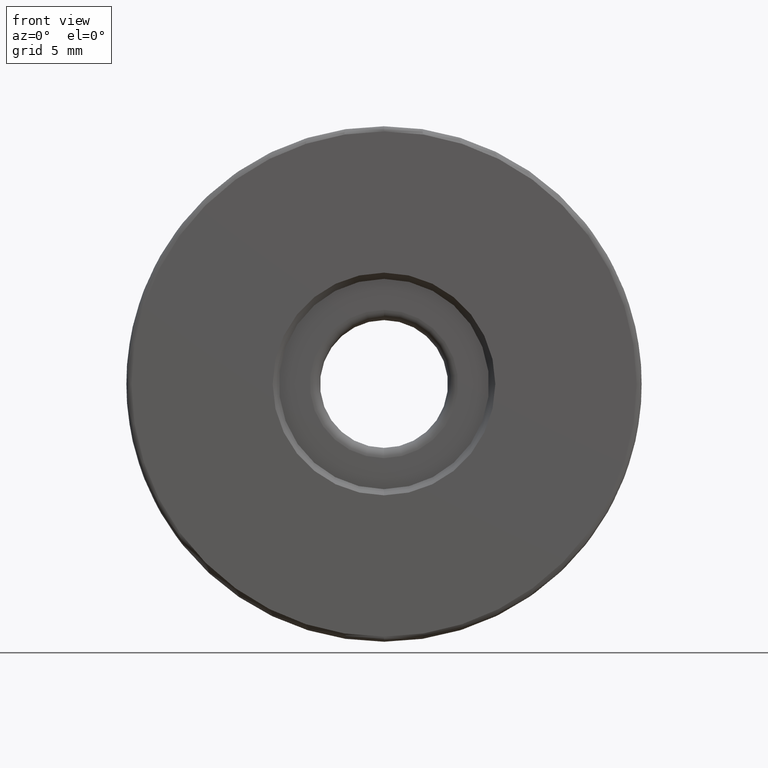
[diagram: clean part render]
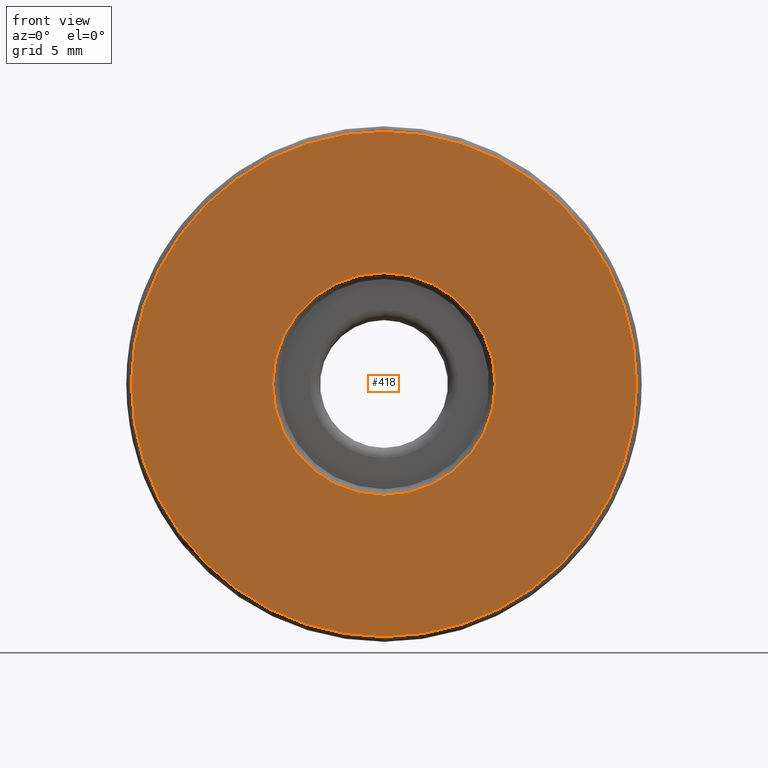
[diagram: same view with one face highlighted and labeled with its STEP entity id]
A machine part, front view. The second image highlights one B-rep face of the part: STEP entity #418.
In plain terms, the highlighted planar face has unit normal (0, 1, 0).
Its self-contained STEP definition (entity closure, byte-faithful):
#9 = VERTEX_POINT ( 'NONE', #367 ) ;
#18 = CARTESIAN_POINT ( 'NONE',  ( -4.682026255059964726, -3.094975976998274536, 25.00000000000000000 ) ) ;
#54 = ORIENTED_EDGE ( 'NONE', *, *, #212, .T. ) ;
#57 = CARTESIAN_POINT ( 'NONE',  ( -4.682026255059964726, -3.094975976998274536, 19.59999999999999787 ) ) ;
#60 = CARTESIAN_POINT ( 'NONE',  ( -4.682026255059964726, -3.094975976998274536, 25.00000000000000000 ) ) ;
#108 = VERTEX_POINT ( 'NONE', #385 ) ;
#122 = DIRECTION ( 'NONE',  ( 0.0000000000000000000, 1.000000000000000000, 0.0000000000000000000 ) ) ;
#140 = FACE_OUTER_BOUND ( 'NONE', #200, .T. ) ;
#141 = CARTESIAN_POINT ( 'NONE',  ( -4.682026255059964726, -3.094975976998274536, 25.00000000000000000 ) ) ;
#161 = VERTEX_POINT ( 'NONE', #379 ) ;
#189 = DIRECTION ( 'NONE',  ( 0.0000000000000000000, 1.000000000000000000, 0.0000000000000000000 ) ) ;
#192 = AXIS2_PLACEMENT_3D ( 'NONE', #18, #541, #355 ) ;
#200 = EDGE_LOOP ( 'NONE', ( #515, #456 ) ) ;
#212 = EDGE_CURVE ( 'NONE', #9, #255, #457, .T. ) ;
#215 = CIRCLE ( 'NONE', #565, 5.400000000000002132 ) ;
#220 = EDGE_LOOP ( 'NONE', ( #400, #54 ) ) ;
#227 = FACE_BOUND ( 'NONE', #220, .T. ) ;
#228 = CARTESIAN_POINT ( 'NONE',  ( -4.682026255059964726, -3.094975976998274536, 25.00000000000000000 ) ) ;
#229 = AXIS2_PLACEMENT_3D ( 'NONE', #60, #122, #440 ) ;
#253 = AXIS2_PLACEMENT_3D ( 'NONE', #604, #371, #410 ) ;
#255 = VERTEX_POINT ( 'NONE', #57 ) ;
#278 = EDGE_CURVE ( 'NONE', #108, #161, #378, .T. ) ;
#355 = DIRECTION ( 'NONE',  ( 0.0000000000000000000, 0.0000000000000000000, 1.000000000000000000 ) ) ;
#364 = DIRECTION ( 'NONE',  ( 0.0000000000000000000, 1.000000000000000000, 0.0000000000000000000 ) ) ;
#367 = CARTESIAN_POINT ( 'NONE',  ( -4.682026255059963837, -3.094975976998274536, 30.40000000000000213 ) ) ;
#369 = DIRECTION ( 'NONE',  ( 0.0000000000000000000, -0.0000000000000000000, 1.000000000000000000 ) ) ;
#371 = DIRECTION ( 'NONE',  ( -0.0000000000000000000, -1.000000000000000000, -0.0000000000000000000 ) ) ;
#378 = CIRCLE ( 'NONE', #192, 12.25000000000000355 ) ;
#379 = CARTESIAN_POINT ( 'NONE',  ( -4.682026255059962949, -3.094975976998274536, 12.75000000000000178 ) ) ;
#385 = CARTESIAN_POINT ( 'NONE',  ( -4.682026255059964726, -3.094975976998274536, 37.25000000000000711 ) ) ;
#400 = ORIENTED_EDGE ( 'NONE', *, *, #563, .T. ) ;
#410 = DIRECTION ( 'NONE',  ( 0.0000000000000000000, 0.0000000000000000000, 1.000000000000000000 ) ) ;
#418 = ADVANCED_FACE ( 'NONE', ( #140, #227 ), #505, .F. ) ;
#440 = DIRECTION ( 'NONE',  ( 0.0000000000000000000, 0.0000000000000000000, 1.000000000000000000 ) ) ;
#445 = EDGE_CURVE ( 'NONE', #161, #108, #522, .T. ) ;
#456 = ORIENTED_EDGE ( 'NONE', *, *, #445, .T. ) ;
#457 = CIRCLE ( 'NONE', #229, 5.400000000000002132 ) ;
#492 = AXIS2_PLACEMENT_3D ( 'NONE', #228, #364, #369 ) ;
#505 = PLANE ( 'NONE',  #492 ) ;
#515 = ORIENTED_EDGE ( 'NONE', *, *, #278, .T. ) ;
#522 = CIRCLE ( 'NONE', #253, 12.25000000000000355 ) ;
#541 = DIRECTION ( 'NONE',  ( -0.0000000000000000000, -1.000000000000000000, -0.0000000000000000000 ) ) ;
#563 = EDGE_CURVE ( 'NONE', #255, #9, #215, .T. ) ;
#565 = AXIS2_PLACEMENT_3D ( 'NONE', #141, #189, #583 ) ;
#583 = DIRECTION ( 'NONE',  ( 0.0000000000000000000, 0.0000000000000000000, 1.000000000000000000 ) ) ;
#604 = CARTESIAN_POINT ( 'NONE',  ( -4.682026255059964726, -3.094975976998274536, 25.00000000000000000 ) ) ;